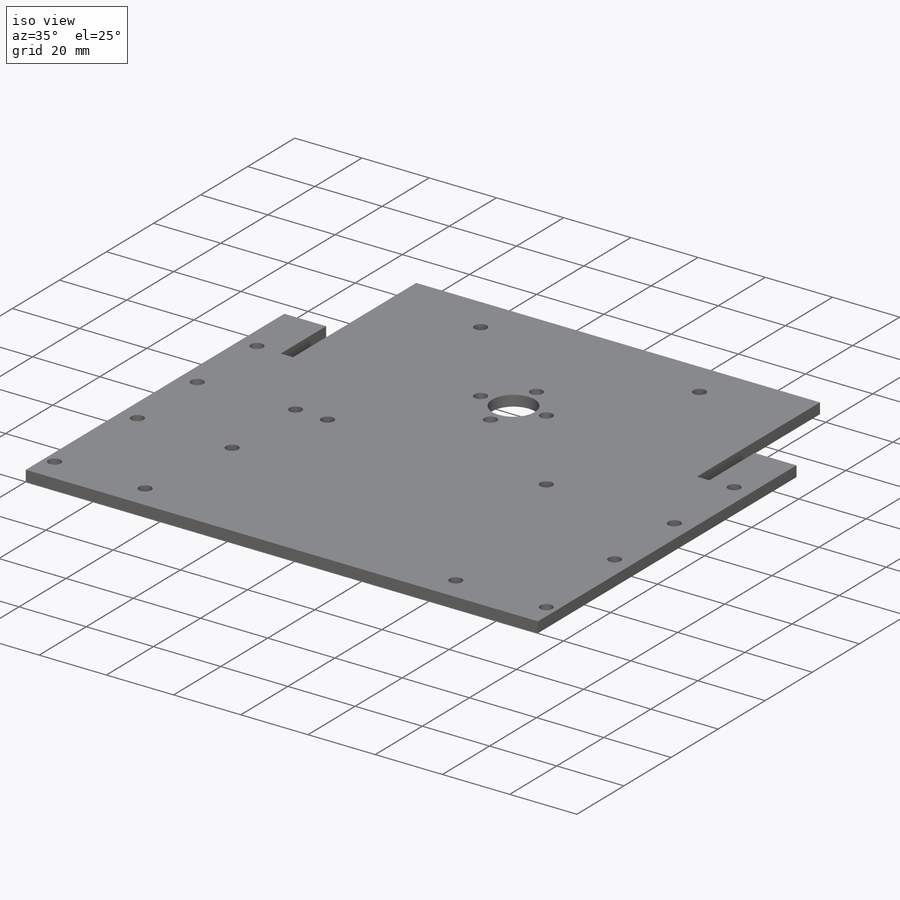
[diagram: iso view]
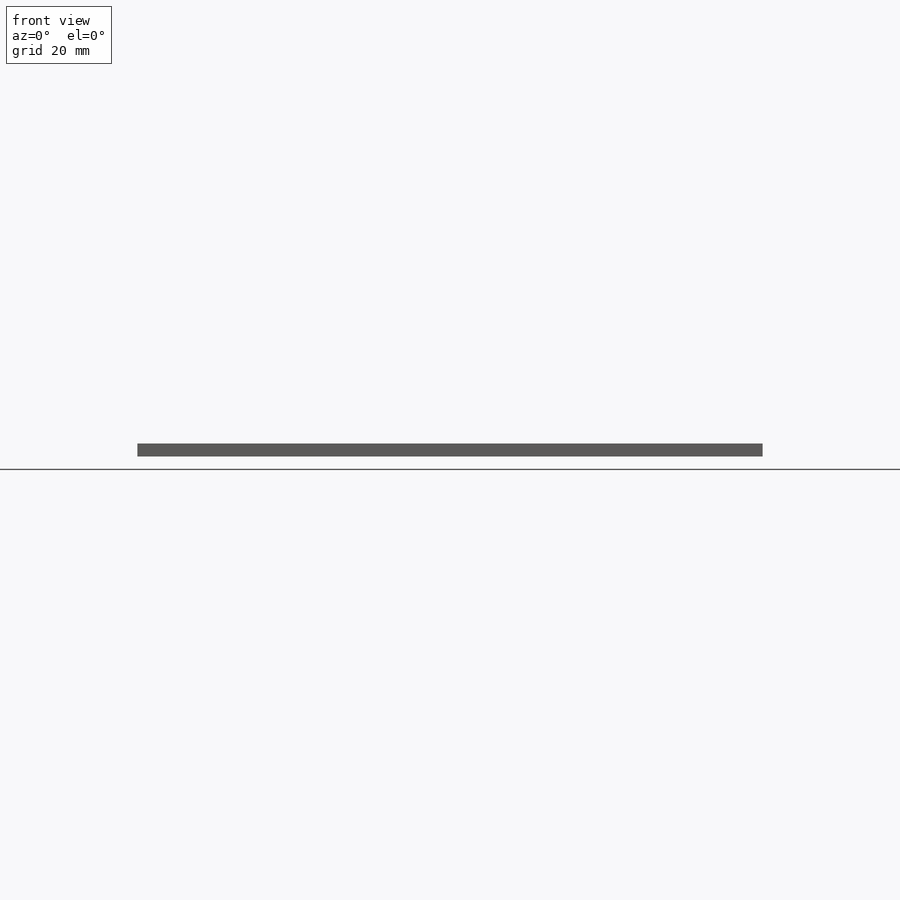
[diagram: front view]
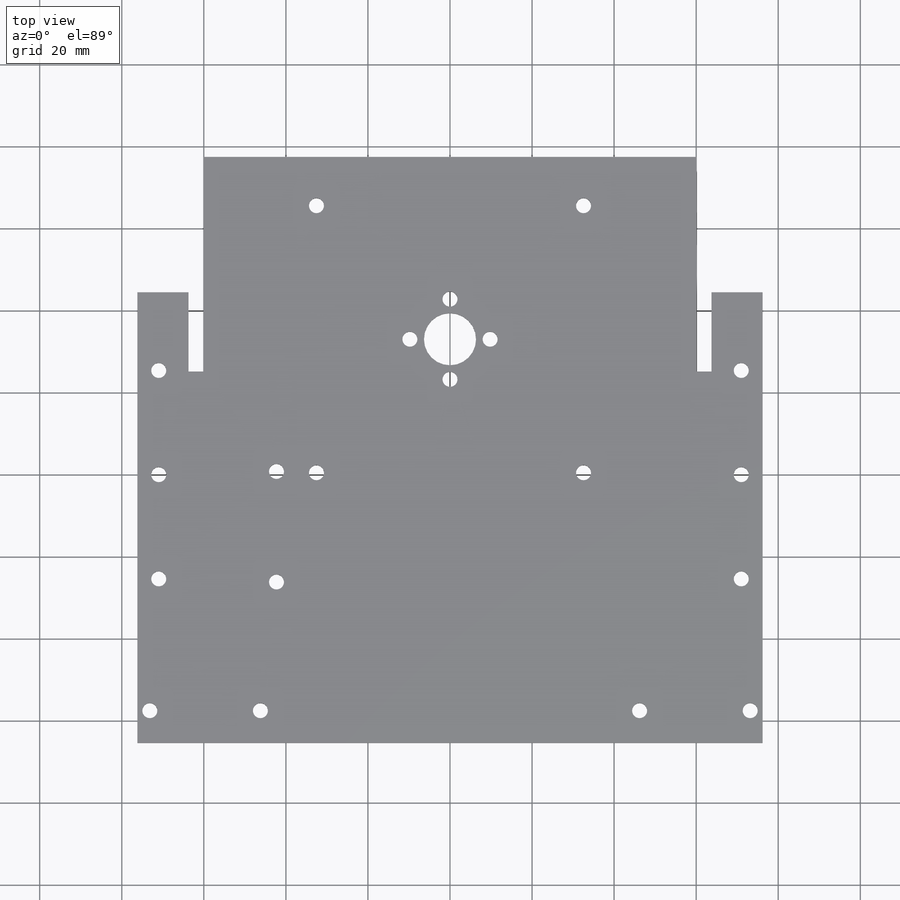
[diagram: top view]
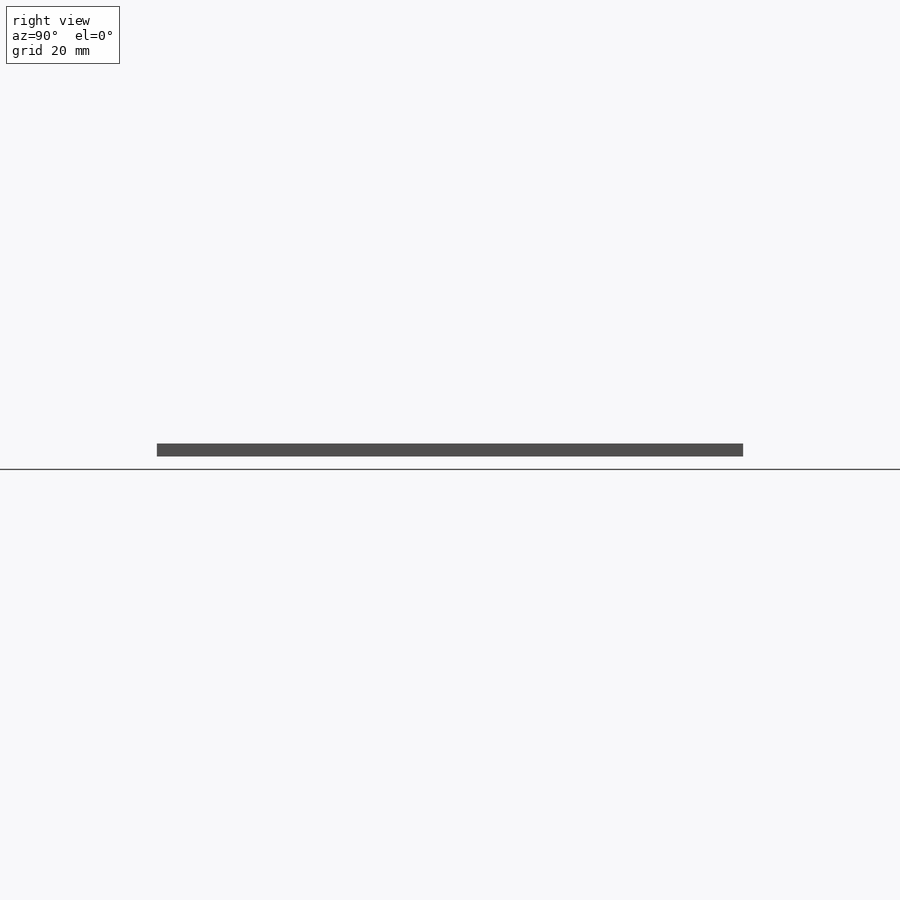
[diagram: right view]
SOLIDWORKS PART (.sldprt)
format: sldprt  version: not decoded by parser v0  size: 461,312 bytes
history: native  units: mm
features: sketch x13, cut_extrude x9, extrude x4, material x1 (+12 scaffold rows collapsed)
feature tree (39):
  scaffold x12  (default folders/planes/origin — collapsed)
  material  "Material <not specified>"
  sketch  "Sketch1"  dims[c1.D1=~86.968129mm c1.D2=~76.443324mm c2.D1=88.9mm c2.D2=152.4mm]
  extrude  "Boss-Extrude1"  Depth=3.175mm
  sketch  "Sketch2"  dims[c1.D1=~117.32381mm c1.D2=~90.714286mm c2.D1=44.45mm c2.D2=~47.830107mm c3.D1=60.325mm c3.D2=44.45mm c3.D3=~7.171563mm c4.D2=3.175mm]
  cut_extrude  "Cut-Extrude1"  [1 undecoded]
  sketch  "Sketch3"  dims[D4=3.6576mm D6=3.6576mm D8=3.6576mm D1=3.175mm D2=4.318mm D3=19.05mm D5=25.4mm D7=25.4mm D9=~120.668148mm]
  cut_extrude  "Cut-Extrude2"  [1 undecoded]
  sketch  "Sketch6"  dims[c1.D1=3.175mm c1.D2=~17.780363mm c2.D1=25.4mm c2.D2=~156.526501mm]
  extrude  "Boss-Extrude2"  Depth=3.175mm
  sketch  "Sketch7"  dims[D2=0.254mm D1=0.254mm]
  cut_extrude  "Cut-Extrude3"  [1 undecoded]
  sketch  "Sketch8"  dims[D2=0.254mm D1=0.254mm]
  cut_extrude  "Cut-Extrude4"  [1 undecoded]
  sketch  "Sketch9"  dims[c1.D1=152.4mm c1.D2=~17.671143mm c2.D1=20.955mm]
  extrude  "Boss-Extrude3"  Depth=3.175mm
  sketch  "Sketch10"  dims[D4=3.6576mm D5=3.6576mm D1=3.0353mm D2=7.874mm D3=26.9494mm]
  cut_extrude  "Cut-Extrude5"  [1 undecoded]
  sketch  "Sketch11"  dims[c1.D1=11.43mm c1.D2=~66.08888mm c1.D3=~65.817348mm c2.D2=88.9mm c2.D3=120.142mm c2.D4=120.142mm]
  extrude  "Boss-Extrude4"  Depth=3.175mm
  sketch  "Sketch12"  dims[D2=12.7mm D1=44.45mm]
  cut_extrude  "Cut-Extrude6"  [1 undecoded]
  sketch  "Sketch13"  dims[c1.D3=3.6576mm c1.D4=3.6576mm c1.D5=3.6576mm c1.D6=3.6576mm c2.D3=3.6576mm c2.D4=3.6576mm c2.D5=3.6576mm c2.D6=3.6576mm c2.D1=~54.615336mm c2.D2=~66.52381mm c3.D1=65.1002mm c3.D2=65.1002mm c3.D7=65.1002mm c4.D1=~77.634866mm c4.D2=~60.318873mm c5.D1=65.1002mm c5.D2=65.1002mm]
  cut_extrude  "Cut-Extrude7"  [1 undecoded]
  sketch  "Sketch14"  dims[D3=3.6576mm D4=3.6576mm D1=9.779mm D2=9.779mm]
  cut_extrude  "Cut-Extrude8"  Depth=101.6mm
  sketch  "Sketch15"  dims[c1.D4=3.6576mm c1.D5=3.6576mm c1.D1=30.734mm c1.D2=39.243mm c1.D3=26.924mm c2.D4=~75.946109mm c2.D3=26.9494mm c2.D1=33.909mm]
  cut_extrude  "Cut-Extrude9"  [1 undecoded]
decode coverage: 18 of 26 modeling features carry decoded parameters
note: ~ marks probable driven/reference dimensions
note: 8 parameter values undecoded
summary: no parameter record found for 8 features
note: suppression state not decoded; provenance and decode notes live in map.json
